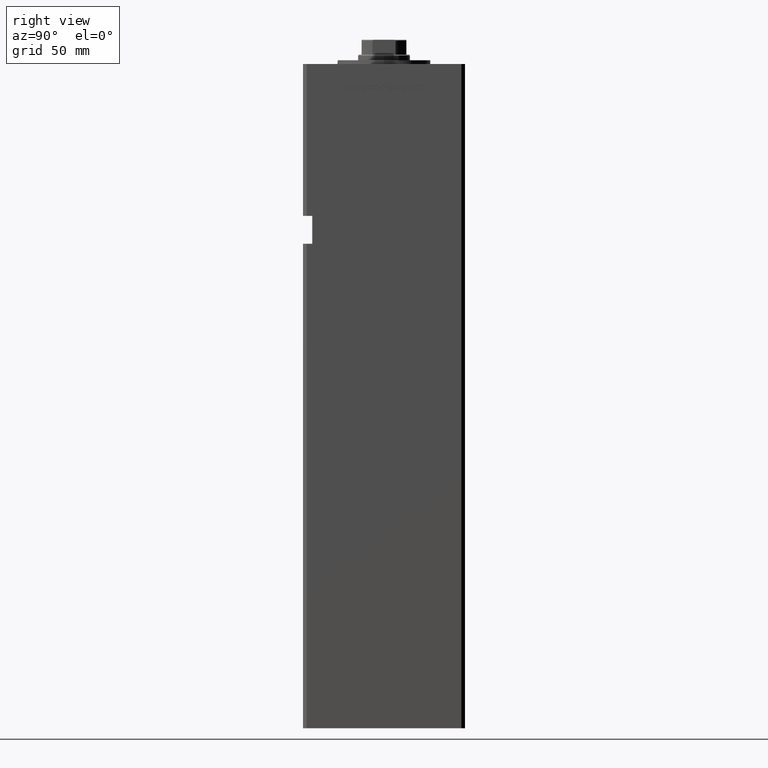
[diagram: clean part render]
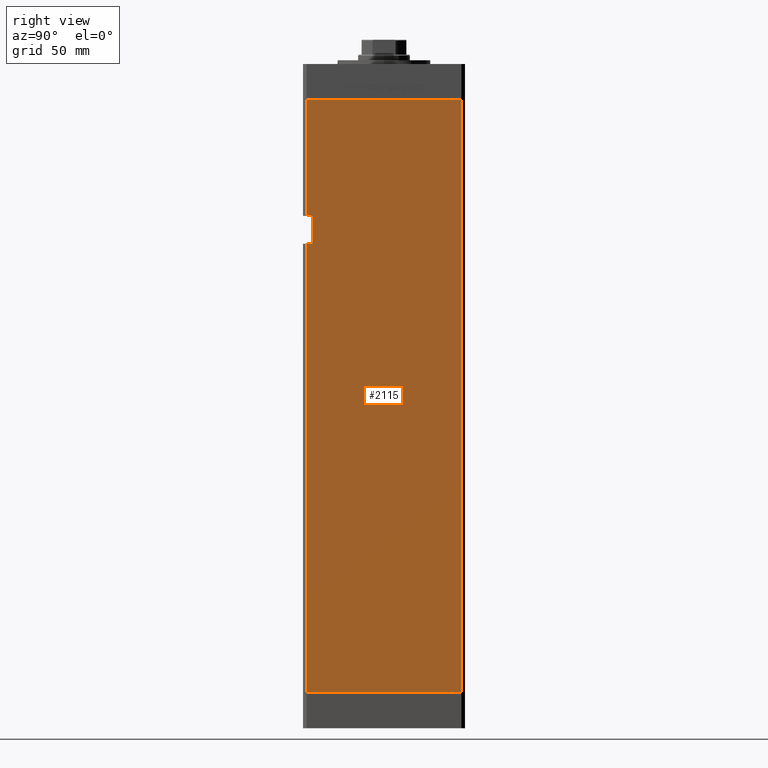
[diagram: same view with one face highlighted and labeled with its STEP entity id]
A machine part, right view. The second image highlights one B-rep face of the part: STEP entity #2115.
In plain terms, the highlighted planar face has unit normal (1, -0, 0).
Its self-contained STEP definition (entity closure, byte-faithful):
#1272 = ORIENTED_EDGE ( 'NONE', *, *, #43325, .F. ) ;
#1638 = CARTESIAN_POINT ( 'NONE',  ( 49.99999999999998579, -41.49999999999999289, 318.5000000000000000 ) ) ;
#1859 = DIRECTION ( 'NONE',  ( -3.344045254895050973E-16, -1.000000000000000000, 0.000000000000000000 ) ) ;
#2115 = ADVANCED_FACE ( 'NONE', ( #33435 ), #29947, .T. ) ;
#3917 = LINE ( 'NONE', #20300, #30081 ) ;
#4481 = VERTEX_POINT ( 'NONE', #18121 ) ;
#4638 = VERTEX_POINT ( 'NONE', #20433 ) ;
#5093 = AXIS2_PLACEMENT_3D ( 'NONE', #42568, #9230, #50356 ) ;
#6303 = ORIENTED_EDGE ( 'NONE', *, *, #49599, .T. ) ;
#6544 = DIRECTION ( 'NONE',  ( -0.000000000000000000, -0.000000000000000000, -1.000000000000000000 ) ) ;
#7376 = VERTEX_POINT ( 'NONE', #1638 ) ;
#9230 = DIRECTION ( 'NONE',  ( 1.000000000000000000, -3.344045254895050480E-16, 0.000000000000000000 ) ) ;
#11726 = VECTOR ( 'NONE', #49011, 1000.000000000000000 ) ;
#12327 = EDGE_CURVE ( 'NONE', #24580, #4481, #51409, .T. ) ;
#13014 = DIRECTION ( 'NONE',  ( -0.000000000000000000, -0.000000000000000000, 1.000000000000000000 ) ) ;
#14557 = CARTESIAN_POINT ( 'NONE',  ( 49.99999999999998579, -38.50000000000000000, 256.0000000000000000 ) ) ;
#14809 = LINE ( 'NONE', #15602, #49245 ) ;
#15157 = ORIENTED_EDGE ( 'NONE', *, *, #42265, .F. ) ;
#15601 = VECTOR ( 'NONE', #41736, 1000.000000000000000 ) ;
#15602 = CARTESIAN_POINT ( 'NONE',  ( 49.99999999999998579, -41.49999999999999289, 318.5000000000000000 ) ) ;
#15807 = ORIENTED_EDGE ( 'NONE', *, *, #29507, .T. ) ;
#16716 = ORIENTED_EDGE ( 'NONE', *, *, #12327, .F. ) ;
#17844 = EDGE_CURVE ( 'NONE', #36038, #24272, #31009, .T. ) ;
#18069 = DIRECTION ( 'NONE',  ( -0.000000000000000000, -1.000000000000000000, -0.000000000000000000 ) ) ;
#18121 = CARTESIAN_POINT ( 'NONE',  ( 49.99999999999998579, -41.49999999999999289, 256.0000000000000000 ) ) ;
#18670 = ORIENTED_EDGE ( 'NONE', *, *, #35496, .F. ) ;
#19569 = EDGE_CURVE ( 'NONE', #7376, #4481, #14809, .T. ) ;
#20300 = CARTESIAN_POINT ( 'NONE',  ( 49.99999999999998579, -38.50000000000000000, 256.0000000000000000 ) ) ;
#20433 = CARTESIAN_POINT ( 'NONE',  ( 49.99999999999998579, -38.49999999999999289, 241.0000000000000000 ) ) ;
#20684 = VECTOR ( 'NONE', #18069, 1000.000000000000000 ) ;
#20875 = DIRECTION ( 'NONE',  ( -0.000000000000000000, -0.000000000000000000, -1.000000000000000000 ) ) ;
#20990 = VERTEX_POINT ( 'NONE', #32505 ) ;
#21845 = CARTESIAN_POINT ( 'NONE',  ( 49.99999999999998579, -41.49999999999999289, 0.000000000000000000 ) ) ;
#22267 = LINE ( 'NONE', #30084, #52952 ) ;
#24034 = LINE ( 'NONE', #36662, #11726 ) ;
#24272 = VERTEX_POINT ( 'NONE', #21845 ) ;
#24580 = VERTEX_POINT ( 'NONE', #26089 ) ;
#26089 = CARTESIAN_POINT ( 'NONE',  ( 49.99999999999998579, -38.50000000000000000, 256.0000000000000000 ) ) ;
#26972 = CARTESIAN_POINT ( 'NONE',  ( 49.99999999999998579, -41.49999999999999289, 318.5000000000000000 ) ) ;
#29507 = EDGE_CURVE ( 'NONE', #4638, #36038, #24034, .T. ) ;
#29947 = PLANE ( 'NONE',  #5093 ) ;
#30081 = VECTOR ( 'NONE', #13014, 1000.000000000000000 ) ;
#30084 = CARTESIAN_POINT ( 'NONE',  ( 50.00000000000001421, 41.49999999999999289, 0.000000000000000000 ) ) ;
#30895 = VECTOR ( 'NONE', #20875, 1000.000000000000000 ) ;
#31009 = LINE ( 'NONE', #26972, #34645 ) ;
#32024 = DIRECTION ( 'NONE',  ( -0.000000000000000000, -0.000000000000000000, -1.000000000000000000 ) ) ;
#32505 = CARTESIAN_POINT ( 'NONE',  ( 50.00000000000001421, 41.49999999999999289, 318.5000000000000000 ) ) ;
#33242 = LINE ( 'NONE', #37808, #30895 ) ;
#33435 = FACE_OUTER_BOUND ( 'NONE', #41672, .T. ) ;
#34645 = VECTOR ( 'NONE', #6544, 1000.000000000000000 ) ;
#35496 = EDGE_CURVE ( 'NONE', #41435, #24272, #22267, .T. ) ;
#36038 = VERTEX_POINT ( 'NONE', #36635 ) ;
#36140 = LINE ( 'NONE', #36406, #15601 ) ;
#36406 = CARTESIAN_POINT ( 'NONE',  ( 50.00000000000001421, 41.49999999999999289, 318.5000000000000000 ) ) ;
#36635 = CARTESIAN_POINT ( 'NONE',  ( 49.99999999999998579, -41.49999999999999289, 241.0000000000000000 ) ) ;
#36662 = CARTESIAN_POINT ( 'NONE',  ( 49.99999999999998579, -38.50000000000000000, 241.0000000000000000 ) ) ;
#37808 = CARTESIAN_POINT ( 'NONE',  ( 50.00000000000001421, 41.49999999999999289, 318.5000000000000000 ) ) ;
#41318 = ORIENTED_EDGE ( 'NONE', *, *, #17844, .T. ) ;
#41435 = VERTEX_POINT ( 'NONE', #51151 ) ;
#41672 = EDGE_LOOP ( 'NONE', ( #15807, #41318, #18670, #15157, #6303, #51963, #16716, #1272 ) ) ;
#41736 = DIRECTION ( 'NONE',  ( -3.344045254895050973E-16, -1.000000000000000000, 0.000000000000000000 ) ) ;
#42265 = EDGE_CURVE ( 'NONE', #20990, #41435, #33242, .T. ) ;
#42568 = CARTESIAN_POINT ( 'NONE',  ( 50.00000000000001421, 41.49999999999999289, 318.5000000000000000 ) ) ;
#43325 = EDGE_CURVE ( 'NONE', #4638, #24580, #3917, .T. ) ;
#49011 = DIRECTION ( 'NONE',  ( -0.000000000000000000, -1.000000000000000000, -0.000000000000000000 ) ) ;
#49245 = VECTOR ( 'NONE', #32024, 1000.000000000000000 ) ;
#49599 = EDGE_CURVE ( 'NONE', #20990, #7376, #36140, .T. ) ;
#50356 = DIRECTION ( 'NONE',  ( 3.344045254895050480E-16, 1.000000000000000000, 0.000000000000000000 ) ) ;
#51151 = CARTESIAN_POINT ( 'NONE',  ( 50.00000000000001421, 41.49999999999999289, 0.000000000000000000 ) ) ;
#51409 = LINE ( 'NONE', #14557, #20684 ) ;
#51963 = ORIENTED_EDGE ( 'NONE', *, *, #19569, .T. ) ;
#52952 = VECTOR ( 'NONE', #1859, 1000.000000000000000 ) ;